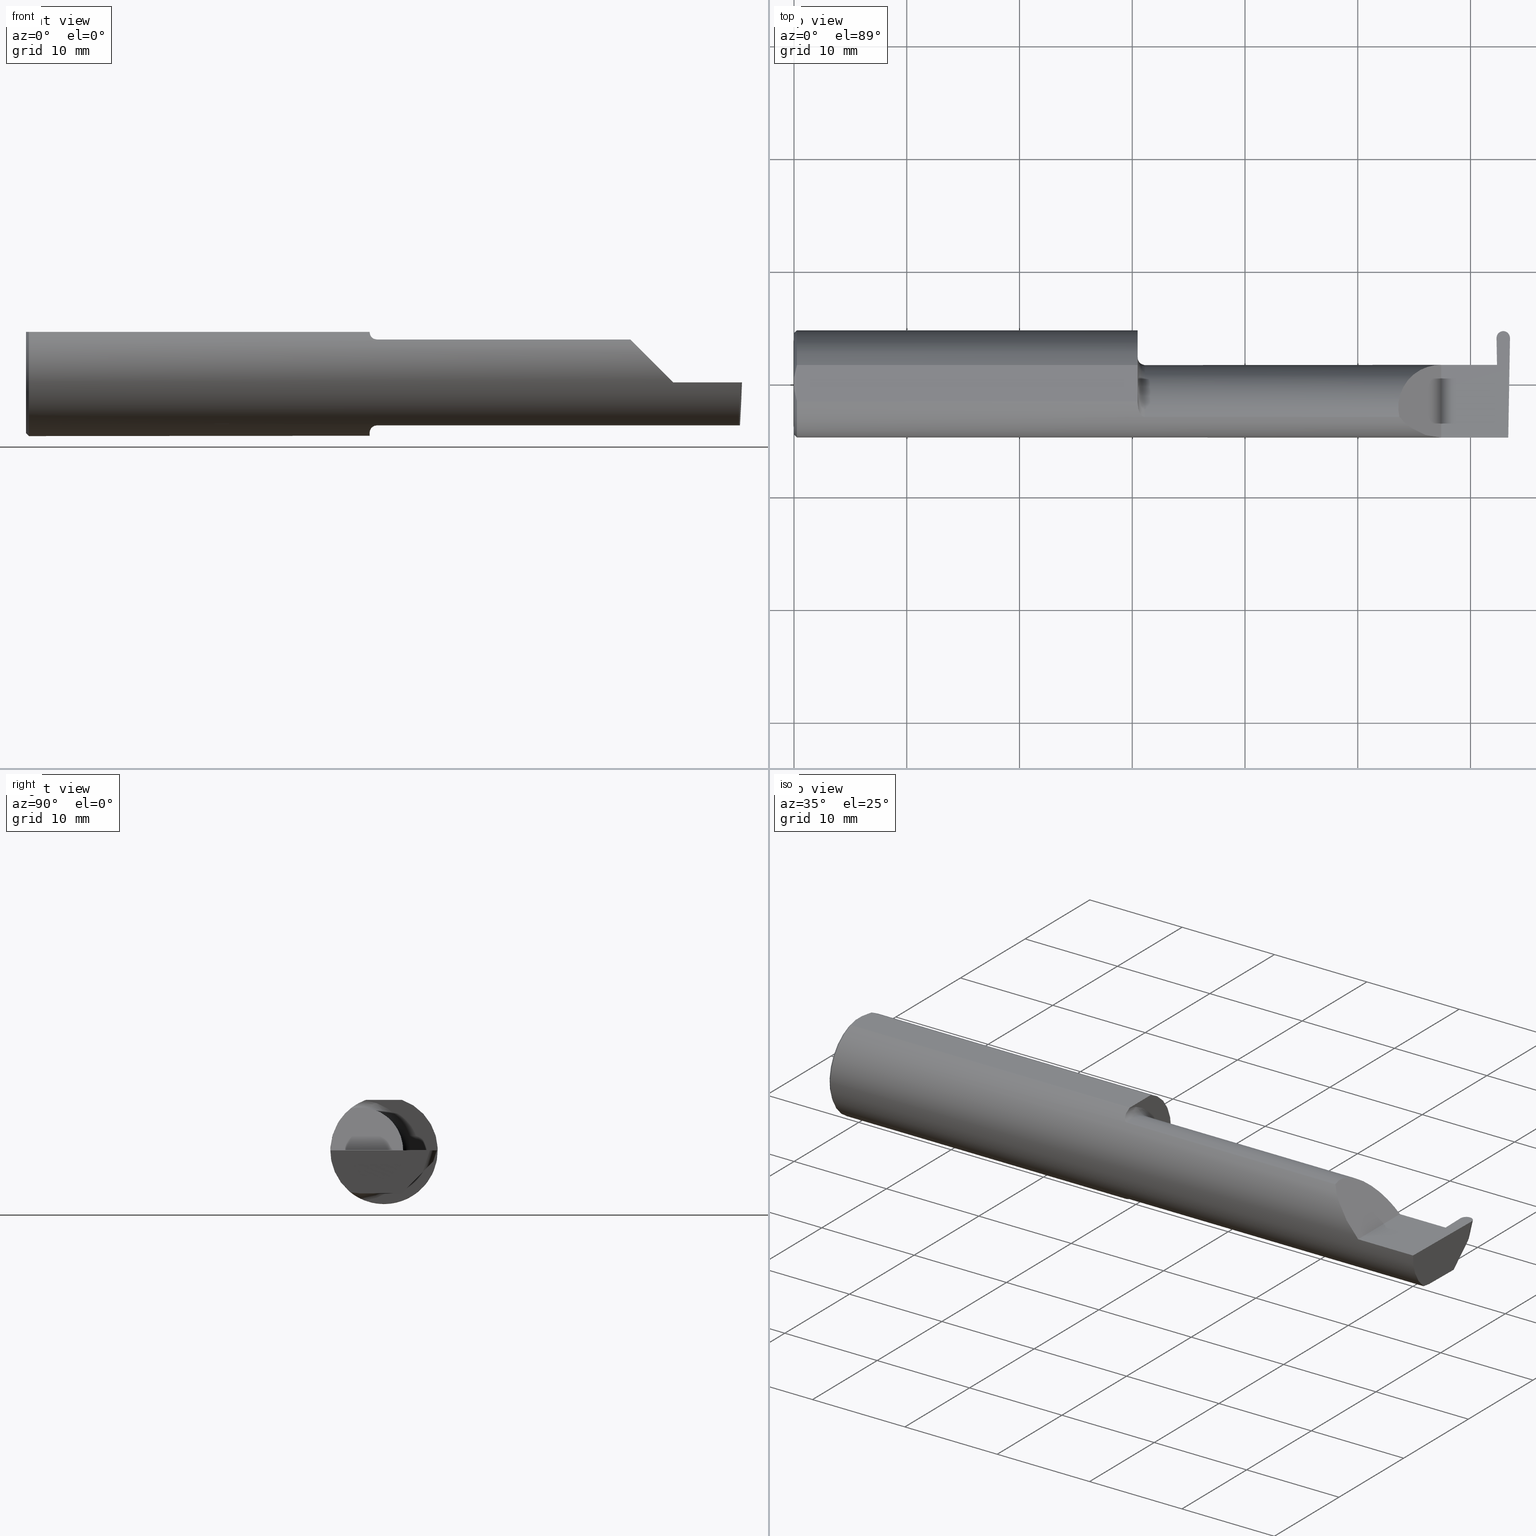
[diagram: canonical four-view strip — front | top / right | iso, engineering-drawing reading convention]
A machine part, canonical four-view strip (front | top / right | iso — engineering-drawing reading convention). The complete STEP part file that produces these views, byte-faithful:
ISO-10303-21;
HEADER;
FILE_DESCRIPTION (( 'STEP AP203' ),
    '1' );
FILE_NAME ('222113-GFR046-20.STEP',
    '2024-06-21T22:55:31',
    ( '' ),
    ( '' ),
    'SwSTEP 2.0',
    'SolidWorks 2022',
    '' );
FILE_SCHEMA (( 'CONFIG_CONTROL_DESIGN' ));
ENDSEC;

DATA;
#1 = CALENDAR_DATE ( 2024, 21, 6 ) ;
#2 = APPROVAL ( #324, 'UNSPECIFIED' ) ;
#3 = LINE ( 'NONE', #265, #423 ) ;
#4 = ORIENTED_EDGE ( 'NONE', *, *, #242, .T. ) ;
#5 = PERSON_AND_ORGANIZATION_ROLE ( 'classification_officer' ) ;
#6 = DIRECTION ( 'NONE',  ( -0.01745240643727576091, -0.9998476951563914916, 0.000000000000000000 ) ) ;
#7 = ADVANCED_FACE ( 'NONE', ( #267 ), #610, .T. ) ;
#8 = CARTESIAN_POINT ( 'NONE',  ( 1.213163223656403167, -0.1119926267047279267, 0.1502091925606061362 ) ) ;
#9 = CARTESIAN_POINT ( 'NONE',  ( 0.000000000000000000, 0.000000000000000000, 0.000000000000000000 ) ) ;
#10 = ADVANCED_FACE ( 'NONE', ( #439 ), #273, .T. ) ;
#11 = VECTOR ( 'NONE', #192, 39.37007874015748143 ) ;
#12 = DIRECTION ( 'NONE',  ( -6.813485650141123812E-17, 1.000000000000000000, 0.000000000000000000 ) ) ;
#13 = LINE ( 'NONE', #669, #501 ) ;
#14 = VERTEX_POINT ( 'NONE', #225 ) ;
#15 = CARTESIAN_POINT ( 'NONE',  ( 2.456016969906897884, 0.1354885203010862127, -0.07481453124206378924 ) ) ;
#16 = DIRECTION ( 'NONE',  ( 1.000000000000000000, 0.000000000000000000, 0.000000000000000000 ) ) ;
#17 = CIRCLE ( 'NONE', #376, 0.1773499999999999521 ) ;
#18 = EDGE_CURVE ( 'NONE', #521, #631, #63, .T. ) ;
#19 = CARTESIAN_POINT ( 'NONE',  ( 2.456016969906897884, 0.1354885203010862127, -0.07481453124206378924 ) ) ;
#20 = CARTESIAN_POINT ( 'NONE',  ( 0.000000000000000000, 0.01880691362238934988, 0.1763499999999999235 ) ) ;
#21 = DIRECTION ( 'NONE',  ( -0.03701368837992554534, 0.7066222423871548752, 0.7066222423871629799 ) ) ;
#22 = DIRECTION ( 'NONE',  ( 1.000000000000000000, 0.000000000000000000, -0.000000000000000000 ) ) ;
#23 = ORIENTED_EDGE ( 'NONE', *, *, #410, .T. ) ;
#24 = CARTESIAN_POINT ( 'NONE',  ( 2.490297801769516539, -0.09477667630339420279, -0.1499999999999999667 ) ) ;
#25 = CARTESIAN_POINT ( 'NONE',  ( 2.447302279143278358, 0.06640640502598232908, -0.006975647374413146938 ) ) ;
#26 = EDGE_LOOP ( 'NONE', ( #67, #356, #400 ) ) ;
#27 = DIRECTION ( 'NONE',  ( 0.000000000000000000, 0.000000000000000000, -1.000000000000000000 ) ) ;
#28 = EDGE_CURVE ( 'NONE', #672, #136, #232, .T. ) ;
#29 = CARTESIAN_POINT ( 'NONE',  ( 2.452963582209922055, 0.1607195194005952010, 0.000000000000000000 ) ) ;
#30 = VECTOR ( 'NONE', #245, 39.37007874015748143 ) ;
#31 = CARTESIAN_POINT ( 'NONE',  ( 0.01000000000000013205, -0.06325108694718235836, 0.1763499999999999235 ) ) ;
#32 = ORIENTED_EDGE ( 'NONE', *, *, #316, .T. ) ;
#33 = CARTESIAN_POINT ( 'NONE',  ( 2.454977397848501219, 0.06628460753894979685, -0.01046347106162132459 ) ) ;
#34 = CARTESIAN_POINT ( 'NONE',  ( 2.490571174359867967, -0.07911517109126274538, -0.1500000000000000500 ) ) ;
#35 = ORIENTED_EDGE ( 'NONE', *, *, #657, .T. ) ;
#36 = DIRECTION ( 'NONE',  ( 0.03490480639812536257, 0.000000000000000000, -0.9993906415863165194 ) ) ;
#37 = CARTESIAN_POINT ( 'NONE',  ( 0.000000000000000000, -0.01880691362238934641, 0.1763499999999999235 ) ) ;
#38 = ORIENTED_EDGE ( 'NONE', *, *, #167, .F. ) ;
#39 = CARTESIAN_POINT ( 'NONE',  ( 2.452979680742863433, 0.1597972350660649687, 0.000000000000000000 ) ) ;
#40 = B_SPLINE_CURVE_WITH_KNOTS ( 'NONE', 3,
 ( #118, #328, #563, #616, #281, #121, #231, #8, #663, #554, #60, #68 ),
 .UNSPECIFIED., .F., .F.,
 ( 4, 2, 2, 2, 2, 4 ),
 ( 4.423516731080811751E-05, 0.0004615475116586734692, 0.0008788598560065388277, 0.001296172200354404240, 0.001504828372528336025, 0.001713484544702268027 ),
 .UNSPECIFIED. ) ;
#41 = EDGE_CURVE ( 'NONE', #105, #420, #382, .T. ) ;
#42 = ORIENTED_EDGE ( 'NONE', *, *, #119, .T. ) ;
#43 = DIRECTION ( 'NONE',  ( 0.000000000000000000, 0.000000000000000000, 1.000000000000000000 ) ) ;
#44 = CARTESIAN_POINT ( 'NONE',  ( 1.199999999999999956, -0.08335000000000007681, 0.000000000000000000 ) ) ;
#45 = VERTEX_POINT ( 'NONE', #390 ) ;
#46 = CC_DESIGN_DATE_AND_TIME_ASSIGNMENT ( #219, #111, ( #114 ) ) ;
#47 = AXIS2_PLACEMENT_3D ( 'NONE', #89, #454, #666 ) ;
#48 = PERSON_AND_ORGANIZATION_ROLE ( 'design_owner' ) ;
#49 = CARTESIAN_POINT ( 'NONE',  ( 2.499996417790078862, 0.1607195194005952565, 0.000000000000000000 ) ) ;
#50 = ORIENTED_EDGE ( 'NONE', *, *, #28, .T. ) ;
#51 = SECURITY_CLASSIFICATION_LEVEL ( 'unclassified' ) ;
#52 = CARTESIAN_POINT ( 'NONE',  ( 2.496943030093102145, 0.1354885203010862682, -0.07481453124206370597 ) ) ;
#53 = ORIENTED_EDGE ( 'NONE', *, *, #518, .T. ) ;
#54 = COORDINATED_UNIVERSAL_TIME_OFFSET ( 8, 0, .BEHIND. ) ;
#55 = ADVANCED_FACE ( 'NONE', ( #504 ), #336, .F. ) ;
#56 = ORIENTED_EDGE ( 'NONE', *, *, #434, .T. ) ;
#57 = VECTOR ( 'NONE', #300, 39.37007874015748143 ) ;
#58 = ORGANIZATION ( 'UNSPECIFIED', 'UNSPECIFIED', '' ) ;
#59 = CARTESIAN_POINT ( 'NONE',  ( 1.215028532764138580, -0.1137241120808236416, -0.1488947809299402958 ) ) ;
#60 = CARTESIAN_POINT ( 'NONE',  ( 1.222161949849308371, -0.1172600179964063821, 0.1461167706989258686 ) ) ;
#61 = EDGE_CURVE ( 'NONE', #521, #146, #40, .T. ) ;
#62 = CARTESIAN_POINT ( 'NONE',  ( 1.206304331342287650, -0.1022198306720692035, -0.1570962426853817762 ) ) ;
#63 = CIRCLE ( 'NONE', #404, 0.1749999999999999889 ) ;
#64 = ORIENTED_EDGE ( 'NONE', *, *, #600, .F. ) ;
#65 = VECTOR ( 'NONE', #671, 39.37007874015748854 ) ;
#66 = CARTESIAN_POINT ( 'NONE',  ( 1.200358271039144276, -0.07873626113568087115, -0.1700887912276896063 ) ) ;
#67 = ORIENTED_EDGE ( 'NONE', *, *, #283, .T. ) ;
#68 = CARTESIAN_POINT ( 'NONE',  ( 1.225000000000000089, -0.1172600179964007477, 0.1461167706989301984 ) ) ;
#69 = EDGE_LOOP ( 'NONE', ( #72, #591, #56, #85, #482, #254 ) ) ;
#70 = EDGE_CURVE ( 'NONE', #447, #631, #455, .T. ) ;
#71 = CARTESIAN_POINT ( 'NONE',  ( 2.260000000000000231, 0.06664999999999991764, 1.592040838891559588E-16 ) ) ;
#72 = ORIENTED_EDGE ( 'NONE', *, *, #509, .F. ) ;
#73 = CARTESIAN_POINT ( 'NONE',  ( 2.473071381531744883, 0.1551305672486518739, -0.09085147220557604486 ) ) ;
#74 = FACE_OUTER_BOUND ( 'NONE', #375, .T. ) ;
#75 = AXIS2_PLACEMENT_3D ( 'NONE', #645, #352, #151 ) ;
#76 = CARTESIAN_POINT ( 'NONE',  ( 1.199999999999999956, -0.06851976604679066440, -0.1743704796142198643 ) ) ;
#77 = VERTEX_POINT ( 'NONE', #182 ) ;
#78 = DIRECTION ( 'NONE',  ( -0.03858184836401777618, -0.3087869137032490663, -0.9503484007996426675 ) ) ;
#79 = CYLINDRICAL_SURFACE ( 'NONE', #667, 0.02350000000000002087 ) ;
#80 = PLANE ( 'NONE',  #168 ) ;
#81 = LINE ( 'NONE', #347, #158 ) ;
#82 = ORIENTED_EDGE ( 'NONE', *, *, #542, .T. ) ;
#83 = EDGE_CURVE ( 'NONE', #698, #304, #13, .T. ) ;
#84 = CARTESIAN_POINT ( 'NONE',  ( 2.490040979592266446, -0.1172600179964007061, -0.1461167706989302817 ) ) ;
#85 = ORIENTED_EDGE ( 'NONE', *, *, #562, .F. ) ;
#86 = LINE ( 'NONE', #627, #11 ) ;
#87 = EDGE_LOOP ( 'NONE', ( #317, #298, #90 ) ) ;
#88 = CC_DESIGN_PERSON_AND_ORGANIZATION_ASSIGNMENT ( #318, #438, ( #223 ) ) ;
#89 = CARTESIAN_POINT ( 'NONE',  ( 1.199999999999999956, 0.000000000000000000, 0.000000000000000000 ) ) ;
#90 = ORIENTED_EDGE ( 'NONE', *, *, #680, .T. ) ;
#91 = CARTESIAN_POINT ( 'NONE',  ( 2.452963582209922055, 0.1607195194005952010, 0.000000000000000000 ) ) ;
#92 = CIRCLE ( 'NONE', #570, 0.1873499999999999888 ) ;
#93 = CARTESIAN_POINT ( 'NONE',  ( 2.491901754046578876, -0.1873499999999999610, -0.05781030015605118783 ) ) ;
#94 = ORIENTED_EDGE ( 'NONE', *, *, #226, .T. ) ;
#95 = PLANE ( 'NONE',  #327 ) ;
#96 = ADVANCED_FACE ( 'NONE', ( #446 ), #270, .T. ) ;
#97 = ORIENTED_EDGE ( 'NONE', *, *, #357, .F. ) ;
#98 = FACE_OUTER_BOUND ( 'NONE', #201, .T. ) ;
#99 = ORIENTED_EDGE ( 'NONE', *, *, #41, .T. ) ;
#100 = CALENDAR_DATE ( 2024, 21, 6 ) ;
#101 = CARTESIAN_POINT ( 'NONE',  ( 2.460115337567889249, -0.08334999999999999354, -0.1499999999999999944 ) ) ;
#102 = EDGE_LOOP ( 'NONE', ( #506, #126, #626, #512 ) ) ;
#103 = B_SPLINE_CURVE_WITH_KNOTS ( 'NONE', 3,
 ( #520, #25, #148, #692 ),
 .UNSPECIFIED., .F., .F.,
 ( 4, 4 ),
 ( 0.000000000000000000, 1.000000000000000000 ),
 .UNSPECIFIED. ) ;
#104 = CARTESIAN_POINT ( 'NONE',  ( 2.459895087900160870, 0.06145200698433272296, -0.1488510445587935549 ) ) ;
#105 = VERTEX_POINT ( 'NONE', #229 ) ;
#106 = VECTOR ( 'NONE', #78, 39.37007874015748143 ) ;
#107 = CALENDAR_DATE ( 2024, 21, 6 ) ;
#108 =( BOUNDED_CURVE ( )  B_SPLINE_CURVE ( 3, ( #535, #218, #164, #597 ),
 .UNSPECIFIED., .F., .F. ) 
 B_SPLINE_CURVE_WITH_KNOTS ( ( 4, 4 ),
 ( 3.175776140005400983, 4.698536687208078710 ),
 .UNSPECIFIED. ) 
 CURVE ( )  GEOMETRIC_REPRESENTATION_ITEM ( )  RATIONAL_B_SPLINE_CURVE ( ( 1.000000000000000000, 0.8159229469975433080, 0.8159229469975433080, 1.000000000000000000 ) ) 
 REPRESENTATION_ITEM ( '' )  );
#109 = CARTESIAN_POINT ( 'NONE',  ( 1.199999999999999956, 0.06325108694718235836, 0.1763499999999999235 ) ) ;
#110 = ORIENTED_EDGE ( 'NONE', *, *, #147, .T. ) ;
#111 = DATE_TIME_ROLE ( 'creation_date' ) ;
#112 = EDGE_CURVE ( 'NONE', #216, #396, #541, .T. ) ;
#113 = APPROVAL_DATE_TIME ( #268, #2 ) ;
#114 = PRODUCT_DEFINITION ( 'UNKNOWN', '', #223, #700 ) ;
#115 = DIRECTION ( 'NONE',  ( 0.000000000000000000, -1.000000000000000000, 0.000000000000000000 ) ) ;
#116 = VECTOR ( 'NONE', #683, 39.37007874015748854 ) ;
#117 = CC_DESIGN_SECURITY_CLASSIFICATION ( #636, ( #223 ) ) ;
#118 = CARTESIAN_POINT ( 'NONE',  ( 1.199999999999999956, -0.06851976604679066440, 0.1743704796142198643 ) ) ;
#119 = EDGE_CURVE ( 'NONE', #136, #396, #665, .T. ) ;
#120 = DIRECTION ( 'NONE',  ( 0.000000000000000000, 0.000000000000000000, -1.000000000000000000 ) ) ;
#121 = CARTESIAN_POINT ( 'NONE',  ( 1.206287624083520305, -0.1021858045380147212, 0.1571187174372874473 ) ) ;
#122 = CARTESIAN_POINT ( 'NONE',  ( 2.462360552522071089, 0.1846499999999998698, 1.730980851401795297E-18 ) ) ;
#123 = LINE ( 'NONE', #204, #469 ) ;
#124 =( GEOMETRIC_REPRESENTATION_CONTEXT ( 3 ) GLOBAL_UNCERTAINTY_ASSIGNED_CONTEXT ( ( #366 ) ) GLOBAL_UNIT_ASSIGNED_CONTEXT ( ( #416, #406, #480 ) ) REPRESENTATION_CONTEXT ( 'NONE', 'WORKASPACE' ) );
#125 = DIRECTION ( 'NONE',  ( -0.03549161113179515048, 0.03487750912278131388, 0.9987611851171729338 ) ) ;
#126 = ORIENTED_EDGE ( 'NONE', *, *, #647, .T. ) ;
#127 = ADVANCED_FACE ( 'NONE', ( #519 ), #586, .F. ) ;
#128 = CARTESIAN_POINT ( 'NONE',  ( 1.225000000000000089, -0.08335000000000010456, 0.000000000000000000 ) ) ;
#129 = ORIENTED_EDGE ( 'NONE', *, *, #388, .F. ) ;
#130 = CARTESIAN_POINT ( 'NONE',  ( 0.001616639753276021213, 0.03405189565400638246, 0.1763499999999999235 ) ) ;
#131 = CARTESIAN_POINT ( 'NONE',  ( -0.001039370078739994957, 0.1846500000000000363, 0.000000000000000000 ) ) ;
#132 = DIRECTION ( 'NONE',  ( 0.000000000000000000, 1.000000000000000000, 0.000000000000000000 ) ) ;
#133 = ORIENTED_EDGE ( 'NONE', *, *, #590, .F. ) ;
#134 = CARTESIAN_POINT ( 'NONE',  ( 2.476480000000000459, 0.1722500154617881696, -0.03805303608136137439 ) ) ;
#135 = DIRECTION ( 'NONE',  ( 0.000000000000000000, -0.7071067811865434649, -0.7071067811865515695 ) ) ;
#136 = VERTEX_POINT ( 'NONE', #189 ) ;
#137 = DIRECTION ( 'NONE',  ( -0.000000000000000000, 1.000000000000000000, -0.000000000000000000 ) ) ;
#138 = LINE ( 'NONE', #394, #601 ) ;
#139 = AXIS2_PLACEMENT_3D ( 'NONE', #258, #705, #594 ) ;
#140 = CARTESIAN_POINT ( 'NONE',  ( 0.000000000000000000, 0.01880691362238934988, 0.1763499999999999235 ) ) ;
#141 = FACE_OUTER_BOUND ( 'NONE', #387, .T. ) ;
#142 = EDGE_CURVE ( 'NONE', #706, #568, #484, .T. ) ;
#143 = PLANE ( 'NONE',  #407 ) ;
#144 = ORIENTED_EDGE ( 'NONE', *, *, #657, .F. ) ;
#145 = CARTESIAN_POINT ( 'NONE',  ( 2.150065971957465294, -0.1623470442677542591, 0.1099340280425336325 ) ) ;
#146 = VERTEX_POINT ( 'NONE', #681 ) ;
#147 = EDGE_CURVE ( 'NONE', #568, #577, #138, .T. ) ;
#148 = CARTESIAN_POINT ( 'NONE',  ( 2.447424076630286827, 0.06652820251299113030, -0.003487823687206573469 ) ) ;
#149 = EDGE_LOOP ( 'NONE', ( #642, #702, #313, #393, #415 ) ) ;
#150 = LINE ( 'NONE', #359, #176 ) ;
#151 = DIRECTION ( 'NONE',  ( 0.03547001781079399396, 0.000000000000000000, -0.9993707409347654114 ) ) ;
#152 = LINE ( 'NONE', #587, #30 ) ;
#153 = ORIENTED_EDGE ( 'NONE', *, *, #288, .T. ) ;
#154 = ADVANCED_FACE ( 'NONE', ( #74 ), #292, .F. ) ;
#155 = FACE_OUTER_BOUND ( 'NONE', #595, .T. ) ;
#156 = VECTOR ( 'NONE', #197, 39.37007874015748854 ) ;
#157 = DIRECTION ( 'NONE',  ( 0.000000000000000000, -0.7071067811865515695, 0.7071067811865434649 ) ) ;
#158 = VECTOR ( 'NONE', #297, 39.37007874015748143 ) ;
#159 = CARTESIAN_POINT ( 'NONE',  ( 2.476480000000000459, 0.1722500154617881696, -0.03805303608136137439 ) ) ;
#160 = ORIENTED_EDGE ( 'NONE', *, *, #600, .T. ) ;
#161 = EDGE_CURVE ( 'NONE', #163, #105, #621, .T. ) ;
#162 = CARTESIAN_POINT ( 'NONE',  ( 2.447545874117295739, 0.06664999999999991764, 0.000000000000000000 ) ) ;
#163 = VERTEX_POINT ( 'NONE', #515 ) ;
#164 = CARTESIAN_POINT ( 'NONE',  ( 2.498023799314527338, 0.1561213079040834895, -0.05418174363906625574 ) ) ;
#165 = ORIENTED_EDGE ( 'NONE', *, *, #410, .F. ) ;
#166 = CARTESIAN_POINT ( 'NONE',  ( 2.459937291069381970, 0.06030305154315083321, -0.1499999999999999944 ) ) ;
#167 = EDGE_CURVE ( 'NONE', #672, #14, #307, .T. ) ;
#168 = AXIS2_PLACEMENT_3D ( 'NONE', #472, #157, #135 ) ;
#169 = PERSON_AND_ORGANIZATION ( #697, #58 ) ;
#170 = ORIENTED_EDGE ( 'NONE', *, *, #173, .T. ) ;
#171 = APPROVAL_DATE_TIME ( #430, #334 ) ;
#172 = CARTESIAN_POINT ( 'NONE',  ( 1.219511795768554840, -0.1163687266324236191, -0.1468371510166787963 ) ) ;
#173 = EDGE_CURVE ( 'NONE', #581, #704, #285, .T. ) ;
#174 = DIRECTION ( 'NONE',  ( -1.000000000000000000, -0.000000000000000000, -0.000000000000000000 ) ) ;
#175 = DIRECTION ( 'NONE',  ( 0.03490480639812536257, 0.000000000000000000, 0.9993906415863165194 ) ) ;
#176 = VECTOR ( 'NONE', #583, 39.37007874015748143 ) ;
#177 = CC_DESIGN_APPROVAL ( #685, ( #114 ) ) ;
#178 = CC_DESIGN_PERSON_AND_ORGANIZATION_ASSIGNMENT ( #432, #48, ( #678 ) ) ;
#179 = CARTESIAN_POINT ( 'NONE',  ( 1.199999999999999956, -0.08335000000000007681, 0.000000000000000000 ) ) ;
#180 = DIRECTION ( 'NONE',  ( 0.000000000000000000, 0.000000000000000000, 1.000000000000000000 ) ) ;
#181 = DIRECTION ( 'NONE',  ( 0.000000000000000000, 0.000000000000000000, 1.000000000000000000 ) ) ;
#182 = CARTESIAN_POINT ( 'NONE',  ( 2.260000000000000231, -0.1873499999999999888, 2.939152317953647352E-17 ) ) ;
#183 = EDGE_CURVE ( 'NONE', #396, #581, #688, .T. ) ;
#184 = ORIENTED_EDGE ( 'NONE', *, *, #695, .F. ) ;
#185 = AXIS2_PLACEMENT_3D ( 'NONE', #363, #266, #319 ) ;
#186 = CARTESIAN_POINT ( 'NONE',  ( 2.476759731742398163, 0.1846500000000000363, 0.000000000000000000 ) ) ;
#187 = DIRECTION ( 'NONE',  ( -0.001239419280281356568, 0.9999992319196288060, 0.000000000000000000 ) ) ;
#188 = VERTEX_POINT ( 'NONE', #186 ) ;
#189 = CARTESIAN_POINT ( 'NONE',  ( 2.454605571778825102, 0.06664999999999998703, 0.000000000000000000 ) ) ;
#190 = APPLICATION_CONTEXT ( 'configuration controlled 3d designs of mechanical parts and assemblies' ) ;
#191 = FACE_OUTER_BOUND ( 'NONE', #561, .T. ) ;
#192 = DIRECTION ( 'NONE',  ( 1.000000000000000000, -0.000000000000000000, -0.000000000000000000 ) ) ;
#193 = DIRECTION ( 'NONE',  ( -1.000000000000000000, -6.813485650141123812E-17, -0.000000000000000000 ) ) ;
#194 = CARTESIAN_POINT ( 'NONE',  ( 2.260000000000000231, 0.06664999999999991764, 1.592040838891559588E-16 ) ) ;
#195 = AXIS2_PLACEMENT_3D ( 'NONE', #508, #442, #614 ) ;
#196 = ORIENTED_EDGE ( 'NONE', *, *, #553, .F. ) ;
#197 = DIRECTION ( 'NONE',  ( 0.03858184836401847007, -0.3087869137032490108, -0.9503484007996424454 ) ) ;
#198 = ADVANCED_FACE ( 'NONE', ( #287 ), #612, .T. ) ;
#199 = CC_DESIGN_APPROVAL ( #2, ( #636 ) ) ;
#200 = DIRECTION ( 'NONE',  ( 0.9992386149554827179, 0.01744177490282465548, 0.03489949670250104552 ) ) ;
#201 = EDGE_LOOP ( 'NONE', ( #42, #618, #246, #453, #50 ) ) ;
#202 = DIRECTION ( 'NONE',  ( -0.03858184836401778312, -0.3087869137032490663, -0.9503484007996426675 ) ) ;
#203 = ORIENTED_EDGE ( 'NONE', *, *, #518, .F. ) ;
#204 = CARTESIAN_POINT ( 'NONE',  ( 0.000000000000000000, -0.06325108694718235836, 0.1763499999999999235 ) ) ;
#205 = CARTESIAN_POINT ( 'NONE',  ( 2.490517704308097713, -0.1623470442677541203, -0.1099340280425337990 ) ) ;
#206 = ORIENTED_EDGE ( 'NONE', *, *, #546, .T. ) ;
#207 = LENGTH_MEASURE_WITH_UNIT ( LENGTH_MEASURE( 0.02539999999999999897 ), #699 );
#208 = DIRECTION ( 'NONE',  ( -0.000000000000000000, 1.000000000000000000, -0.000000000000000000 ) ) ;
#209 = DIRECTION ( 'NONE',  ( -1.000000000000000000, -6.813485650141123812E-17, -0.000000000000000000 ) ) ;
#210 = ORIENTED_EDGE ( 'NONE', *, *, #477, .T. ) ;
#211 = EDGE_CURVE ( 'NONE', #77, #282, #417, .T. ) ;
#212 = DIRECTION ( 'NONE',  ( -0.7071067811865509034, 0.000000000000000000, 0.7071067811865440200 ) ) ;
#213 = LINE ( 'NONE', #422, #651 ) ;
#214 = VECTOR ( 'NONE', #466, 39.37007874015748143 ) ;
#215 = AXIS2_PLACEMENT_3D ( 'NONE', #350, #675, #564 ) ;
#216 = VERTEX_POINT ( 'NONE', #343 ) ;
#217 = DATE_AND_TIME ( #435, #230 ) ;
#218 = CARTESIAN_POINT ( 'NONE',  ( 2.489663928990823560, 0.1711396766916337964, -0.03916337485151577535 ) ) ;
#219 = DATE_AND_TIME ( #107, #452 ) ;
#220 = DIRECTION ( 'NONE',  ( -0.03858184836401846313, 0.3087869137032490108, 0.9503484007996424454 ) ) ;
#221 = EDGE_CURVE ( 'NONE', #412, #581, #578, .T. ) ;
#222 = APPROVAL_ROLE ( '' ) ;
#223 = PRODUCT_DEFINITION_FORMATION_WITH_SPECIFIED_SOURCE ( 'ANY', '', #678, .NOT_KNOWN. ) ;
#224 = COORDINATED_UNIVERSAL_TIME_OFFSET ( 8, 0, .BEHIND. ) ;
#225 = CARTESIAN_POINT ( 'NONE',  ( 2.447180481656269446, 0.06628460753897352786, -0.01046347106161971824 ) ) ;
#226 = EDGE_CURVE ( 'NONE', #378, #136, #240, .T. ) ;
#227 = DIRECTION ( 'NONE',  ( 0.000000000000000000, 0.000000000000000000, -1.000000000000000000 ) ) ;
#228 = DIRECTION ( 'NONE',  ( -1.000000000000000000, -6.813485650141123812E-17, -0.000000000000000000 ) ) ;
#229 = CARTESIAN_POINT ( 'NONE',  ( 2.490497255146305822, -0.08334999999999997966, -0.1500000000000000500 ) ) ;
#230 = LOCAL_TIME ( 15, 55, 31.00000000000000000, #707 ) ;
#231 = CARTESIAN_POINT ( 'NONE',  ( 1.208475602106621416, -0.1064978748893407601, 0.1542035505680382779 ) ) ;
#232 = LINE ( 'NONE', #668, #622 ) ;
#233 = ADVANCED_FACE ( 'NONE', ( #694 ), #79, .T. ) ;
#234 = ORIENTED_EDGE ( 'NONE', *, *, #388, .T. ) ;
#235 = DIRECTION ( 'NONE',  ( 0.7071067811865511255, 0.000000000000000000, -0.7071067811865439090 ) ) ;
#236 = CARTESIAN_POINT ( 'NONE',  ( 2.493004728488126265, 0.06030305154315079852, -0.1500000000000000500 ) ) ;
#237 = CC_DESIGN_PERSON_AND_ORGANIZATION_ASSIGNMENT ( #169, #5, ( #636 ) ) ;
#238 = ORIENTED_EDGE ( 'NONE', *, *, #28, .F. ) ;
#239 = LOCAL_TIME ( 15, 55, 31.00000000000000000, #607 ) ;
#240 = LINE ( 'NONE', #401, #550 ) ;
#241 = LINE ( 'NONE', #256, #272 ) ;
#242 = EDGE_CURVE ( 'NONE', #163, #447, #150, .T. ) ;
#243 = CARTESIAN_POINT ( 'NONE',  ( 0.01000000000000013205, 0.000000000000000000, 0.000000000000000000 ) ) ;
#244 = CARTESIAN_POINT ( 'NONE',  ( 0.000000000000000000, 0.000000000000000000, 0.000000000000000000 ) ) ;
#245 = DIRECTION ( 'NONE',  ( -0.03701368837992397021, -0.7066222423871549863, -0.7066222423871630909 ) ) ;
#246 = ORIENTED_EDGE ( 'NONE', *, *, #221, .F. ) ;
#247 = CARTESIAN_POINT ( 'NONE',  ( 0.000000000000000000, 0.000000000000000000, 0.000000000000000000 ) ) ;
#248 = CARTESIAN_POINT ( 'NONE',  ( 2.733184360054361939, -0.08334999999999997966, -0.1500000000000000500 ) ) ;
#249 = ORIENTED_EDGE ( 'NONE', *, *, #708, .T. ) ;
#250 = CARTESIAN_POINT ( 'NONE',  ( 2.452968669080377140, 0.1598853660763216722, 0.0002712393593816663493 ) ) ;
#251 = VECTOR ( 'NONE', #187, 39.37007874015748854 ) ;
#252 = ORIENTED_EDGE ( 'NONE', *, *, #226, .F. ) ;
#253 = CARTESIAN_POINT ( 'NONE',  ( 2.490599447477928052, 0.1846499999999998420, -1.730980851401792408E-18 ) ) ;
#254 = ORIENTED_EDGE ( 'NONE', *, *, #288, .F. ) ;
#255 = CARTESIAN_POINT ( 'NONE',  ( 2.457926070388992468, 0.06048930266824071450, -0.09334019187383278682 ) ) ;
#256 = CARTESIAN_POINT ( 'NONE',  ( 1.199999999999999956, 0.06664999999999984825, 1.592040838891559588E-16 ) ) ;
#257 = ORIENTED_EDGE ( 'NONE', *, *, #167, .T. ) ;
#258 = CARTESIAN_POINT ( 'NONE',  ( 2.472512750841366902, 0.1918129394110904828, 0.09809285817454170553 ) ) ;
#259 = ORIENTED_EDGE ( 'NONE', *, *, #386, .F. ) ;
#260 = PERSON_AND_ORGANIZATION ( #697, #58 ) ;
#261 = CARTESIAN_POINT ( 'NONE',  ( 2.113883229301068312, -0.1172600179964008726, 0.1461167706989301429 ) ) ;
#262 = VECTOR ( 'NONE', #137, 39.37007874015748143 ) ;
#263 = ORIENTED_EDGE ( 'NONE', *, *, #70, .F. ) ;
#264 = PERSON_AND_ORGANIZATION ( #697, #58 ) ;
#265 = CARTESIAN_POINT ( 'NONE',  ( 0.000000000000000000, 0.1873499999999998500, 0.1763499999999999235 ) ) ;
#266 = DIRECTION ( 'NONE',  ( 9.668203783556934093E-15, -0.9993908270190957621, 0.03489949670250104552 ) ) ;
#267 = FACE_OUTER_BOUND ( 'NONE', #331, .T. ) ;
#268 = DATE_AND_TIME ( #1, #502 ) ;
#269 =( BOUNDED_CURVE ( )  B_SPLINE_CURVE ( 3, ( #372, #603, #255, #475 ),
 .UNSPECIFIED., .F., .F. ) 
 B_SPLINE_CURVE_WITH_KNOTS ( ( 4, 4 ),
 ( 3.176499238629677535, 4.677482395344773280 ),
 .UNSPECIFIED. ) 
 CURVE ( )  GEOMETRIC_REPRESENTATION_ITEM ( )  RATIONAL_B_SPLINE_CURVE ( ( 1.000000000000000000, 0.8209024677461199682, 0.8209024677461199682, 1.000000000000000000 ) ) 
 REPRESENTATION_ITEM ( '' )  );
#270 = CONICAL_SURFACE ( 'NONE', #549, 0.1773499999999999521, 0.7853981633974431720 ) ;
#271 = EDGE_CURVE ( 'NONE', #631, #304, #690, .T. ) ;
#272 = VECTOR ( 'NONE', #459, 39.37007874015748143 ) ;
#273 = PLANE ( 'NONE',  #195 ) ;
#274 = CC_DESIGN_PERSON_AND_ORGANIZATION_ASSIGNMENT ( #260, #489, ( #223 ) ) ;
#275 = CARTESIAN_POINT ( 'NONE',  ( 1.222174967710399462, -0.1172600179964008033, -0.1461167706989301707 ) ) ;
#276 = CARTESIAN_POINT ( 'NONE',  ( 1.202960551809340251, -0.09317341542745753713, -0.1626248379125196653 ) ) ;
#277 = CARTESIAN_POINT ( 'NONE',  ( 2.876828993045917215, 0.1873499999999998500, 0.1763499999999999235 ) ) ;
#278 = EDGE_LOOP ( 'NONE', ( #605, #474, #35, #674 ) ) ;
#279 = AXIS2_PLACEMENT_3D ( 'NONE', #243, #582, #27 ) ;
#280 = ADVANCED_FACE ( 'NONE', ( #490 ), #95, .F. ) ;
#281 = CARTESIAN_POINT ( 'NONE',  ( 1.202945243422983035, -0.09312071749437438040, 0.1626553472577905168 ) ) ;
#282 = VERTEX_POINT ( 'NONE', #261 ) ;
#283 = EDGE_CURVE ( 'NONE', #584, #706, #3, .T. ) ;
#284 = CARTESIAN_POINT ( 'NONE',  ( 1.208439486659306672, -0.1064616213911159376, -0.1542305641651500192 ) ) ;
#285 =( BOUNDED_CURVE ( )  B_SPLINE_CURVE ( 3, ( #15, #628, #450, #134 ),
 .UNSPECIFIED., .F., .F. ) 
 B_SPLINE_CURVE_WITH_KNOTS ( ( 4, 4 ),
 ( 4.726241273561298861, 6.249001820764003234 ),
 .UNSPECIFIED. ) 
 CURVE ( )  GEOMETRIC_REPRESENTATION_ITEM ( )  RATIONAL_B_SPLINE_CURVE ( ( 1.000000000000000000, 0.8159229469975370908, 0.8159229469975370908, 1.000000000000000000 ) ) 
 REPRESENTATION_ITEM ( '' )  );
#286 = ORIENTED_EDGE ( 'NONE', *, *, #609, .T. ) ;
#287 = FACE_OUTER_BOUND ( 'NONE', #592, .T. ) ;
#288 = EDGE_CURVE ( 'NONE', #654, #105, #373, .T. ) ;
#289 = CARTESIAN_POINT ( 'NONE',  ( 0.005151108632379722968, -0.04888864921576022843, 0.1763499999999999235 ) ) ;
#290 = VECTOR ( 'NONE', #174, 39.37007874015748143 ) ;
#291 = CARTESIAN_POINT ( 'NONE',  ( 1.199999999999999956, -0.06325108694718287183, 0.1763499999999999235 ) ) ;
#292 = PLANE ( 'NONE',  #215 ) ;
#293 = CARTESIAN_POINT ( 'NONE',  ( 2.490040979592266446, -0.1172600179964007061, -0.1461167706989302817 ) ) ;
#294 = ORIENTED_EDGE ( 'NONE', *, *, #434, .F. ) ;
#295 = CARTESIAN_POINT ( 'NONE',  ( 1.199999999999998623, 0.06628460753894953317, -0.01046347106196185428 ) ) ;
#296 = ORIENTED_EDGE ( 'NONE', *, *, #61, .F. ) ;
#297 = DIRECTION ( 'NONE',  ( -1.000000000000000000, -0.000000000000000000, -0.000000000000000000 ) ) ;
#298 = ORIENTED_EDGE ( 'NONE', *, *, #211, .F. ) ;
#299 = CARTESIAN_POINT ( 'NONE',  ( 2.260000000000000231, -0.2500000000000000555, 2.939152317953647352E-17 ) ) ;
#300 = DIRECTION ( 'NONE',  ( -1.000000000000000000, -6.813485650141123812E-17, -0.000000000000000000 ) ) ;
#301 = ORIENTED_EDGE ( 'NONE', *, *, #562, .T. ) ;
#302 = DIRECTION ( 'NONE',  ( 1.000000000000000000, 0.000000000000000000, 0.000000000000000000 ) ) ;
#303 = CARTESIAN_POINT ( 'NONE',  ( 2.476480000000000015, 0.1790328857325878542, -0.01728770010724656539 ) ) ;
#304 = VERTEX_POINT ( 'NONE', #109 ) ;
#305 = CARTESIAN_POINT ( 'NONE',  ( 2.260000000000000231, -0.2500000000000000555, 2.939152317953647352E-17 ) ) ;
#306 = EDGE_CURVE ( 'NONE', #412, #672, #648, .T. ) ;
#307 = LINE ( 'NONE', #295, #57 ) ;
#308 = LOCAL_TIME ( 15, 55, 31.00000000000000000, #224 ) ;
#309 = PLANE ( 'NONE',  #75 ) ;
#310 = LINE ( 'NONE', #467, #116 ) ;
#311 = VERTEX_POINT ( 'NONE', #166 ) ;
#312 = CARTESIAN_POINT ( 'NONE',  ( 2.454167022061947367, 0.2173950921581846440, 0.007092040615035606621 ) ) ;
#313 = ORIENTED_EDGE ( 'NONE', *, *, #112, .F. ) ;
#314 = PERSON_AND_ORGANIZATION ( #697, #58 ) ;
#315 = LINE ( 'NONE', #131, #691 ) ;
#316 = EDGE_CURVE ( 'NONE', #533, #577, #92, .T. ) ;
#317 = ORIENTED_EDGE ( 'NONE', *, *, #542, .F. ) ;
#318 = PERSON_AND_ORGANIZATION ( #697, #58 ) ;
#319 = DIRECTION ( 'NONE',  ( 0.000000000000000000, -0.03489949670250104552, -0.9993908270190957621 ) ) ;
#320 = VECTOR ( 'NONE', #21, 39.37007874015748854 ) ;
#321 = APPROVAL_PERSON_ORGANIZATION ( #655, #2, #545 ) ;
#322 = CARTESIAN_POINT ( 'NONE',  ( 2.454605571778825102, 0.06664999999999998703, 0.000000000000000000 ) ) ;
#323 = ORIENTED_EDGE ( 'NONE', *, *, #271, .F. ) ;
#324 = APPROVAL_STATUS ( 'not_yet_approved' ) ;
#325 = SHAPE_DEFINITION_REPRESENTATION ( #463, #391 ) ;
#326 = CARTESIAN_POINT ( 'NONE',  ( 0.000000000000000000, 0.000000000000000000, 0.000000000000000000 ) ) ;
#327 = AXIS2_PLACEMENT_3D ( 'NONE', #49, #538, #175 ) ;
#328 = CARTESIAN_POINT ( 'NONE',  ( 1.199999999999999956, -0.07367581953296710451, 0.1723443821957855171 ) ) ;
#329 = CARTESIAN_POINT ( 'NONE',  ( 1.225000000000000089, -0.1172600179964008171, -0.1461167706989301984 ) ) ;
#330 = ADVANCED_FACE ( 'NONE', ( #155 ), #656, .T. ) ;
#331 = EDGE_LOOP ( 'NONE', ( #629, #301, #210, #445, #165, #296, #203, #650, #32, #249, #64, #323, #263 ) ) ;
#332 = CARTESIAN_POINT ( 'NONE',  ( 2.452725869110807366, 0.1743380937279881138, 2.910889271442055903E-18 ) ) ;
#333 = AXIS2_PLACEMENT_3D ( 'NONE', #703, #209, #419 ) ;
#334 = APPROVAL ( #608, 'UNSPECIFIED' ) ;
#335 = ORIENTED_EDGE ( 'NONE', *, *, #494, .F. ) ;
#336 = PLANE ( 'NONE',  #443 ) ;
#337 = ORIENTED_EDGE ( 'NONE', *, *, #569, .T. ) ;
#338 = EDGE_CURVE ( 'NONE', #45, #216, #653, .T. ) ;
#339 = DIRECTION ( 'NONE',  ( -1.000000000000000000, -0.000000000000000000, -0.000000000000000000 ) ) ;
#340 = ORIENTED_EDGE ( 'NONE', *, *, #680, .F. ) ;
#341 = CARTESIAN_POINT ( 'NONE',  ( 2.155331797197863608, 0.06664999999999991764, 0.1046682028021361927 ) ) ;
#342 = ORIENTED_EDGE ( 'NONE', *, *, #41, .F. ) ;
#343 = CARTESIAN_POINT ( 'NONE',  ( 2.476200268257601422, 0.1846500000000000363, 0.000000000000000000 ) ) ;
#344 = PLANE ( 'NONE',  #513 ) ;
#345 = DIRECTION ( 'NONE',  ( -1.000000000000000000, -0.000000000000000000, -0.000000000000000000 ) ) ;
#346 = CLOSED_SHELL ( 'NONE', ( #198, #368, #7, #670, #575, #437, #55, #96, #127, #330, #10, #499, #154, #451, #465, #280, #460, #233, #380 ) ) ;
#347 = CARTESIAN_POINT ( 'NONE',  ( 0.000000000000000000, 0.06325108694718235836, 0.1763499999999999235 ) ) ;
#348 = VERTEX_POINT ( 'NONE', #52 ) ;
#349 = APPROVAL_PERSON_ORGANIZATION ( #264, #334, #222 ) ;
#350 = CARTESIAN_POINT ( 'NONE',  ( -0.001039370078739994957, 0.1846500000000000363, 0.000000000000000000 ) ) ;
#351 = CARTESIAN_POINT ( 'NONE',  ( 0.005155213631852488369, 0.04890080824240059659, 0.1763499999999999235 ) ) ;
#352 = DIRECTION ( 'NONE',  ( 0.9993699743034455407, 0.001238639365660558185, 0.03546999060124557401 ) ) ;
#353 = CARTESIAN_POINT ( 'NONE',  ( 0.000000000000000000, -0.01880691362238934641, 0.1763499999999999235 ) ) ;
#354 = CARTESIAN_POINT ( 'NONE',  ( 2.113883229301068312, -0.1172600179964008726, 0.1461167706989301429 ) ) ;
#355 = CARTESIAN_POINT ( 'NONE',  ( 2.460115757045640450, -0.08368844675136279110, -0.1500000000000000500 ) ) ;
#356 = ORIENTED_EDGE ( 'NONE', *, *, #142, .T. ) ;
#357 = EDGE_CURVE ( 'NONE', #568, #584, #17, .T. ) ;
#358 = CARTESIAN_POINT ( 'NONE',  ( 2.476480000000000459, 0.1722500154617881696, -0.03805303608136137439 ) ) ;
#359 = CARTESIAN_POINT ( 'NONE',  ( 1.838979999999999837, -0.1172600179964007477, -0.1461167706989302817 ) ) ;
#360 = FACE_OUTER_BOUND ( 'NONE', #530, .T. ) ;
#361 = ORIENTED_EDGE ( 'NONE', *, *, #112, .T. ) ;
#362 = AXIS2_PLACEMENT_3D ( 'NONE', #128, #193, #573 ) ;
#363 = CARTESIAN_POINT ( 'NONE',  ( 2.454605571778825102, 0.06664999999999998703, 0.000000000000000000 ) ) ;
#364 = ORIENTED_EDGE ( 'NONE', *, *, #306, .F. ) ;
#365 = ORIENTED_EDGE ( 'NONE', *, *, #83, .T. ) ;
#366 = UNCERTAINTY_MEASURE_WITH_UNIT (LENGTH_MEASURE( 1.000000000000000082E-05 ), #416, 'distance_accuracy_value', 'NONE');
#367 = DIRECTION ( 'NONE',  ( 1.000000000000000000, 6.813485650141123812E-17, 0.000000000000000000 ) ) ;
#368 = ADVANCED_FACE ( 'NONE', ( #431 ), #658, .F. ) ;
#369 = EDGE_LOOP ( 'NONE', ( #335, #661, #424, #184, #534 ) ) ;
#370 = ORIENTED_EDGE ( 'NONE', *, *, #338, .T. ) ;
#371 = PERSON_AND_ORGANIZATION ( #697, #58 ) ;
#372 = CARTESIAN_POINT ( 'NONE',  ( 2.460115337567889249, -0.08334999999999999354, -0.1499999999999999944 ) ) ;
#373 = LINE ( 'NONE', #34, #551 ) ;
#374 = AXIS2_PLACEMENT_3D ( 'NONE', #44, #228, #440 ) ;
#375 = EDGE_LOOP ( 'NONE', ( #687, #370, #449 ) ) ;
#376 = AXIS2_PLACEMENT_3D ( 'NONE', #384, #615, #120 ) ;
#377 = DATE_TIME_ROLE ( 'classification_date' ) ;
#378 = VERTEX_POINT ( 'NONE', #162 ) ;
#379 = APPROVAL_DATE_TIME ( #217, #685 ) ;
#380 = ADVANCED_FACE ( 'NONE', ( #493 ), #701, .T. ) ;
#381 = DIRECTION ( 'NONE',  ( -1.000000000000000000, -0.000000000000000000, -0.000000000000000000 ) ) ;
#382 = LINE ( 'NONE', #385, #290 ) ;
#383 = AXIS2_PLACEMENT_3D ( 'NONE', #247, #339, #523 ) ;
#384 = CARTESIAN_POINT ( 'NONE',  ( 0.000000000000000000, 0.000000000000000000, 0.000000000000000000 ) ) ;
#385 = CARTESIAN_POINT ( 'NONE',  ( 2.733184360054361939, -0.08334999999999997966, -0.1500000000000000500 ) ) ;
#386 = EDGE_CURVE ( 'NONE', #420, #672, #269, .T. ) ;
#387 = EDGE_LOOP ( 'NONE', ( #503, #364, #129, #679 ) ) ;
#388 = EDGE_CURVE ( 'NONE', #311, #412, #427, .T. ) ;
#389 = DIRECTION ( 'NONE',  ( 1.000000000000000000, 0.000000000000000000, -0.000000000000000000 ) ) ;
#390 = CARTESIAN_POINT ( 'NONE',  ( 2.476480000000000015, 0.1824111880958903253, -0.006890354540110450732 ) ) ;
#391 = ADVANCED_BREP_SHAPE_REPRESENTATION ( '222113-GFR046-20', ( #402, #487 ), #124 ) ;
#392 = CIRCLE ( 'NONE', #333, 0.1499999999999999112 ) ;
#393 = ORIENTED_EDGE ( 'NONE', *, *, #338, .F. ) ;
#394 = CARTESIAN_POINT ( 'NONE',  ( 0.000000000000000000, 0.000000000000000000, -0.1773499999999999521 ) ) ;
#395 = CARTESIAN_POINT ( 'NONE',  ( 0.001595548104417008695, -0.03385300050298640367, 0.1763499999999999235 ) ) ;
#396 = VERTEX_POINT ( 'NONE', #39 ) ;
#397 = EDGE_LOOP ( 'NONE', ( #238, #257, #286, #94 ) ) ;
#398 = CARTESIAN_POINT ( 'NONE',  ( 2.500234130889192219, 0.1743380937279881138, -2.910889271442051666E-18 ) ) ;
#399 = CARTESIAN_POINT ( 'NONE',  ( 2.493920841729410753, -0.1873499999999999888, 0.000000000000000000 ) ) ;
#400 = ORIENTED_EDGE ( 'NONE', *, *, #357, .T. ) ;
#401 = CARTESIAN_POINT ( 'NONE',  ( 2.454605571778825102, 0.06664999999999998703, 0.000000000000000000 ) ) ;
#402 = MANIFOLD_SOLID_BREP ( 'Radii', #346 ) ;
#403 = CARTESIAN_POINT ( 'NONE',  ( 2.500000000000000000, -0.2500000000000000555, 0.000000000000000000 ) ) ;
#404 = AXIS2_PLACEMENT_3D ( 'NONE', #179, #673, #115 ) ;
#405 = ORIENTED_EDGE ( 'NONE', *, *, #590, .T. ) ;
#406 =( NAMED_UNIT ( * ) PLANE_ANGLE_UNIT ( ) SI_UNIT ( $, .RADIAN. ) );
#407 = AXIS2_PLACEMENT_3D ( 'NONE', #248, #473, #22 ) ;
#408 = DIRECTION ( 'NONE',  ( 0.000000000000000000, 0.000000000000000000, -1.000000000000000000 ) ) ;
#409 = ORIENTED_EDGE ( 'NONE', *, *, #119, .F. ) ;
#410 = EDGE_CURVE ( 'NONE', #146, #282, #213, .T. ) ;
#411 = CARTESIAN_POINT ( 'NONE',  ( 0.000000000000000000, 0.000000000000000000, -0.1773499999999999521 ) ) ;
#412 = VERTEX_POINT ( 'NONE', #104 ) ;
#413 = CARTESIAN_POINT ( 'NONE',  ( 2.473071381531744883, 0.1327807391157157513, -0.08358957283776476122 ) ) ;
#414 = CARTESIAN_POINT ( 'NONE',  ( 2.090221225029925911, -0.01530148607434188811, 0.1697787749700727378 ) ) ;
#415 = ORIENTED_EDGE ( 'NONE', *, *, #620, .T. ) ;
#416 =( CONVERSION_BASED_UNIT ( 'INCH', #207 ) LENGTH_UNIT ( ) NAMED_UNIT ( #507 ) );
#417 =( BOUNDED_CURVE ( )  B_SPLINE_CURVE ( 3, ( #639, #470, #145, #354 ),
 .UNSPECIFIED., .F., .T. ) 
 B_SPLINE_CURVE_WITH_KNOTS ( ( 4, 4 ),
 ( 4.712388980384688786, 5.606916381293135743 ),
 .UNSPECIFIED. ) 
 CURVE ( )  GEOMETRIC_REPRESENTATION_ITEM ( )  RATIONAL_B_SPLINE_CURVE ( ( 1.000000000000000000, 0.9344226172588803170, 0.9344226172588803170, 1.000000000000000000 ) ) 
 REPRESENTATION_ITEM ( '' )  );
#418 = CARTESIAN_POINT ( 'NONE',  ( 2.472512750841366902, 0.2141627675440266054, 0.09083095880673042188 ) ) ;
#419 = DIRECTION ( 'NONE',  ( 0.000000000000000000, -1.000000000000000000, 0.000000000000000000 ) ) ;
#420 = VERTEX_POINT ( 'NONE', #101 ) ;
#421 = EDGE_CURVE ( 'NONE', #704, #348, #108, .T. ) ;
#422 = CARTESIAN_POINT ( 'NONE',  ( 1.838979999999999837, -0.1172600179964007477, 0.1461167706989302817 ) ) ;
#423 = VECTOR ( 'NONE', #208, 39.37007874015748143 ) ;
#424 = ORIENTED_EDGE ( 'NONE', *, *, #620, .F. ) ;
#425 = CALENDAR_DATE ( 2024, 21, 6 ) ;
#426 = EDGE_CURVE ( 'NONE', #216, #188, #315, .T. ) ;
#427 = LINE ( 'NONE', #312, #624 ) ;
#428 = ORIENTED_EDGE ( 'NONE', *, *, #421, .T. ) ;
#429 = ORIENTED_EDGE ( 'NONE', *, *, #18, .T. ) ;
#430 = DATE_AND_TIME ( #425, #239 ) ;
#431 = FACE_OUTER_BOUND ( 'NONE', #397, .T. ) ;
#432 = PERSON_AND_ORGANIZATION ( #697, #58 ) ;
#433 = AXIS2_PLACEMENT_3D ( 'NONE', #403, #576, #529 ) ;
#434 = EDGE_CURVE ( 'NONE', #557, #598, #458, .T. ) ;
#435 = CALENDAR_DATE ( 2024, 21, 6 ) ;
#436 = DIRECTION ( 'NONE',  ( 1.000000000000000000, 0.000000000000000000, 0.000000000000000000 ) ) ;
#437 = ADVANCED_FACE ( 'NONE', ( #191 ), #505, .T. ) ;
#438 = PERSON_AND_ORGANIZATION_ROLE ( 'creator' ) ;
#439 = FACE_OUTER_BOUND ( 'NONE', #536, .T. ) ;
#440 = DIRECTION ( 'NONE',  ( 0.000000000000000000, -1.000000000000000000, 0.000000000000000000 ) ) ;
#441 = EDGE_CURVE ( 'NONE', #533, #698, #123, .T. ) ;
#442 = DIRECTION ( 'NONE',  ( 1.000000000000000000, 6.813485650141123812E-17, 0.000000000000000000 ) ) ;
#443 = AXIS2_PLACEMENT_3D ( 'NONE', #326, #436, #552 ) ;
#444 = VECTOR ( 'NONE', #220, 39.37007874015748854 ) ;
#445 = ORIENTED_EDGE ( 'NONE', *, *, #211, .T. ) ;
#446 = FACE_OUTER_BOUND ( 'NONE', #278, .T. ) ;
#447 = VERTEX_POINT ( 'NONE', #585 ) ;
#448 = DIRECTION ( 'NONE',  ( 1.000000000000000000, 0.000000000000000000, 0.000000000000000000 ) ) ;
#449 = ORIENTED_EDGE ( 'NONE', *, *, #426, .T. ) ;
#450 = CARTESIAN_POINT ( 'NONE',  ( 2.463296071009176913, 0.1711396766916343237, -0.03916337485151522718 ) ) ;
#451 = ADVANCED_FACE ( 'NONE', ( #634 ), #80, .F. ) ;
#452 = LOCAL_TIME ( 15, 55, 31.00000000000000000, #596 ) ;
#453 = ORIENTED_EDGE ( 'NONE', *, *, #306, .T. ) ;
#454 = DIRECTION ( 'NONE',  ( 1.000000000000000000, 6.813485650141123812E-17, 0.000000000000000000 ) ) ;
#455 = B_SPLINE_CURVE_WITH_KNOTS ( 'NONE', 3,
 ( #329, #275, #172, #59, #556, #284, #62, #276, #498, #66, #500, #497 ),
 .UNSPECIFIED., .F., .F.,
 ( 4, 2, 2, 2, 2, 4 ),
 ( 1.967976973692733563E-07, 0.0002120314145722270013, 0.0004238660314470846929, 0.0008475352651968001303, 0.001271204498946515568, 0.001694873732696231114 ),
 .UNSPECIFIED. ) ;
#456 = FACE_OUTER_BOUND ( 'NONE', #87, .T. ) ;
#457 = CARTESIAN_POINT ( 'NONE',  ( 2.499980319257137484, 0.1597972350660649687, 0.000000000000000000 ) ) ;
#458 = LINE ( 'NONE', #682, #65 ) ;
#459 = DIRECTION ( 'NONE',  ( 1.000000000000000000, 6.813485650141123812E-17, 0.000000000000000000 ) ) ;
#460 = ADVANCED_FACE ( 'NONE', ( #141 ), #309, .F. ) ;
#461 = CARTESIAN_POINT ( 'NONE',  ( 2.490145048687840479, -0.1061291577212409437, -0.1486999626928445506 ) ) ;
#462 = LINE ( 'NONE', #355, #251 ) ;
#463 = PRODUCT_DEFINITION_SHAPE ( 'NONE', 'NONE',  #114 ) ;
#464 = ORIENTED_EDGE ( 'NONE', *, *, #316, .F. ) ;
#465 = ADVANCED_FACE ( 'NONE', ( #98 ), #528, .F. ) ;
#466 = DIRECTION ( 'NONE',  ( -0.01745240643727800564, 0.9998476951563912696, -0.000000000000000000 ) ) ;
#467 = CARTESIAN_POINT ( 'NONE',  ( 2.499991330919623778, 0.1598853660763216722, 0.0002712393593816795224 ) ) ;
#468 = ORIENTED_EDGE ( 'NONE', *, *, #161, .F. ) ;
#469 = VECTOR ( 'NONE', #302, 39.37007874015748143 ) ;
#470 = CARTESIAN_POINT ( 'NONE',  ( 2.202189699843948745, -0.1873500000000000443, 0.05781030015605096578 ) ) ;
#471 = CC_DESIGN_PERSON_AND_ORGANIZATION_ASSIGNMENT ( #371, #602, ( #114 ) ) ;
#472 = CARTESIAN_POINT ( 'NONE',  ( -0.001039370078739994957, 0.1723030515431495657, -0.03799999999999999906 ) ) ;
#473 = DIRECTION ( 'NONE',  ( 0.000000000000000000, 0.000000000000000000, 1.000000000000000000 ) ) ;
#474 = ORIENTED_EDGE ( 'NONE', *, *, #142, .F. ) ;
#475 = CARTESIAN_POINT ( 'NONE',  ( 2.454977397848501219, 0.06628460753894979685, -0.01046347106162132459 ) ) ;
#476 = LINE ( 'NONE', #640, #589 ) ;
#477 = EDGE_CURVE ( 'NONE', #598, #77, #476, .T. ) ;
#478 = CARTESIAN_POINT ( 'NONE',  ( 0.01000000000000013205, 0.06325108694718235836, 0.1763499999999999235 ) ) ;
#479 = ORIENTED_EDGE ( 'NONE', *, *, #426, .F. ) ;
#480 =( NAMED_UNIT ( * ) SI_UNIT ( $, .STERADIAN. ) SOLID_ANGLE_UNIT ( ) );
#481 = DIRECTION ( 'NONE',  ( 1.000000000000000000, 0.000000000000000000, 0.000000000000000000 ) ) ;
#482 = ORIENTED_EDGE ( 'NONE', *, *, #161, .T. ) ;
#483 = EDGE_CURVE ( 'NONE', #557, #188, #496, .T. ) ;
#484 = CIRCLE ( 'NONE', #383, 0.1773499999999999521 ) ;
#485 = APPLICATION_PROTOCOL_DEFINITION ( 'international standard', 'config_control_design', 1994, #611 ) ;
#486 = DIRECTION ( 'NONE',  ( 0.000000000000000000, 0.000000000000000000, -1.000000000000000000 ) ) ;
#487 = AXIS2_PLACEMENT_3D ( 'NONE', #548, #43, #593 ) ;
#488 = ORIENTED_EDGE ( 'NONE', *, *, #83, .F. ) ;
#489 = PERSON_AND_ORGANIZATION_ROLE ( 'design_supplier' ) ;
#490 = FACE_OUTER_BOUND ( 'NONE', #69, .T. ) ;
#491 = EDGE_LOOP ( 'NONE', ( #517, #170, #428, #684, #579, #234 ) ) ;
#492 = APPLICATION_PROTOCOL_DEFINITION ( 'international standard', 'config_control_design', 1994, #190 ) ;
#493 = FACE_OUTER_BOUND ( 'NONE', #149, .T. ) ;
#494 = EDGE_CURVE ( 'NONE', #348, #557, #310, .T. ) ;
#495 = AXIS2_PLACEMENT_3D ( 'NONE', #277, #181, #389 ) ;
#496 =( BOUNDED_CURVE ( )  B_SPLINE_CURVE ( 3, ( #457, #398, #253, #516 ),
 .UNSPECIFIED., .F., .F. ) 
 B_SPLINE_CURVE_WITH_KNOTS ( ( 4, 4 ),
 ( 1.683182027770901534, 3.259781963246008996 ),
 .UNSPECIFIED. ) 
 CURVE ( )  GEOMETRIC_REPRESENTATION_ITEM ( )  RATIONAL_B_SPLINE_CURVE ( ( 1.000000000000000000, 0.8033679476376978101, 0.8033679476376978101, 1.000000000000000000 ) ) 
 REPRESENTATION_ITEM ( '' )  );
#497 = CARTESIAN_POINT ( 'NONE',  ( 1.199999999999999956, -0.06851976604679066440, -0.1743704796142198643 ) ) ;
#498 = CARTESIAN_POINT ( 'NONE',  ( 1.201843912362378086, -0.08846956905169094110, -0.1652353808078971809 ) ) ;
#499 = ADVANCED_FACE ( 'NONE', ( #360 ), #143, .F. ) ;
#500 = CARTESIAN_POINT ( 'NONE',  ( 1.199999999999999956, -0.07368234487347199990, -0.1723418180300747837 ) ) ;
#501 = VECTOR ( 'NONE', #12, 39.37007874015748143 ) ;
#502 = LOCAL_TIME ( 15, 55, 31.00000000000000000, #54 ) ;
#503 = ORIENTED_EDGE ( 'NONE', *, *, #386, .T. ) ;
#504 = FACE_OUTER_BOUND ( 'NONE', #26, .T. ) ;
#505 = PLANE ( 'NONE',  #495 ) ;
#506 = ORIENTED_EDGE ( 'NONE', *, *, #61, .T. ) ;
#507 = DIMENSIONAL_EXPONENTS ( 1.000000000000000000, 0.000000000000000000, 0.000000000000000000, 0.000000000000000000, 0.000000000000000000, 0.000000000000000000, 0.000000000000000000 ) ;
#508 = CARTESIAN_POINT ( 'NONE',  ( 1.199999999999999956, 0.1873499999999998222, 0.000000000000000000 ) ) ;
#509 = EDGE_CURVE ( 'NONE', #348, #654, #152, .T. ) ;
#510 = B_SPLINE_CURVE_WITH_KNOTS ( 'NONE', 3,
 ( #140, #130, #351, #574 ),
 .UNSPECIFIED., .F., .F.,
 ( 4, 4 ),
 ( 0.01188664626022242071, 0.01304646959483746725 ),
 .UNSPECIFIED. ) ;
#511 = CARTESIAN_POINT ( 'NONE',  ( 2.490497255146305822, -0.08334999999999997966, -0.1500000000000000500 ) ) ;
#512 = ORIENTED_EDGE ( 'NONE', *, *, #18, .F. ) ;
#513 = AXIS2_PLACEMENT_3D ( 'NONE', #305, #531, #212 ) ;
#514 = PLANE ( 'NONE',  #433 ) ;
#515 = CARTESIAN_POINT ( 'NONE',  ( 2.490040979592266446, -0.1172600179964007061, -0.1461167706989302817 ) ) ;
#516 = CARTESIAN_POINT ( 'NONE',  ( 2.476759731742398163, 0.1846500000000000363, 0.000000000000000000 ) ) ;
#517 = ORIENTED_EDGE ( 'NONE', *, *, #221, .T. ) ;
#518 = EDGE_CURVE ( 'NONE', #698, #521, #559, .T. ) ;
#519 = FACE_OUTER_BOUND ( 'NONE', #102, .T. ) ;
#520 = CARTESIAN_POINT ( 'NONE',  ( 2.447180481656269446, 0.06628460753897352786, -0.01046347106161971824 ) ) ;
#521 = VERTEX_POINT ( 'NONE', #686 ) ;
#522 = LINE ( 'NONE', #73, #106 ) ;
#523 = DIRECTION ( 'NONE',  ( 0.000000000000000000, 0.000000000000000000, -1.000000000000000000 ) ) ;
#524 = CARTESIAN_POINT ( 'NONE',  ( 2.499980319257137484, 0.1597972350660649687, 0.000000000000000000 ) ) ;
#525 = VERTEX_POINT ( 'NONE', #194 ) ;
#526 = APPROVAL_PERSON_ORGANIZATION ( #314, #685, #659 ) ;
#527 = CARTESIAN_POINT ( 'NONE',  ( 0.01000000000000013205, 0.000000000000000000, 0.000000000000000000 ) ) ;
#528 = PLANE ( 'NONE',  #676 ) ;
#529 = DIRECTION ( 'NONE',  ( -1.000000000000000000, 0.000000000000000000, 1.224646799147353947E-16 ) ) ;
#530 = EDGE_LOOP ( 'NONE', ( #99, #206, #337, #153 ) ) ;
#531 = DIRECTION ( 'NONE',  ( -0.7071067811865441310, 0.000000000000000000, -0.7071067811865510144 ) ) ;
#532 = DIRECTION ( 'NONE',  ( -0.02596452850600340298, 0.7068683906002054540, 0.7068683906002135586 ) ) ;
#533 = VERTEX_POINT ( 'NONE', #31 ) ;
#534 = ORIENTED_EDGE ( 'NONE', *, *, #483, .F. ) ;
#535 = CARTESIAN_POINT ( 'NONE',  ( 2.476480000000000459, 0.1722500154617881696, -0.03805303608136137439 ) ) ;
#536 = EDGE_LOOP ( 'NONE', ( #693, #488, #53, #429 ) ) ;
#537 = APPROVAL_STATUS ( 'not_yet_approved' ) ;
#538 = DIRECTION ( 'NONE',  ( -0.9992386149554827179, 0.01744177490282240728, 0.03489949670250104552 ) ) ;
#539 = CIRCLE ( 'NONE', #279, 0.1873499999999999888 ) ;
#540 = ORIENTED_EDGE ( 'NONE', *, *, #483, .T. ) ;
#541 =( BOUNDED_CURVE ( )  B_SPLINE_CURVE ( 3, ( #619, #122, #332, #558 ),
 .UNSPECIFIED., .F., .F. ) 
 B_SPLINE_CURVE_WITH_KNOTS ( ( 4, 4 ),
 ( 6.164995997523367244, 7.741595932998476925 ),
 .UNSPECIFIED. ) 
 CURVE ( )  GEOMETRIC_REPRESENTATION_ITEM ( )  RATIONAL_B_SPLINE_CURVE ( ( 1.000000000000000000, 0.8033679476376971440, 0.8033679476376971440, 1.000000000000000000 ) ) 
 REPRESENTATION_ITEM ( '' )  );
#542 = EDGE_CURVE ( 'NONE', #282, #525, #617, .T. ) ;
#543 = DIRECTION ( 'NONE',  ( -0.03549161113179515048, 0.03487750912278131388, 0.9987611851171729338 ) ) ;
#544 = ORIENTED_EDGE ( 'NONE', *, *, #283, .F. ) ;
#545 = APPROVAL_ROLE ( '' ) ;
#546 = EDGE_CURVE ( 'NONE', #420, #311, #462, .T. ) ;
#547 = ORIENTED_EDGE ( 'NONE', *, *, #647, .F. ) ;
#548 = CARTESIAN_POINT ( 'NONE',  ( 0.000000000000000000, 0.000000000000000000, 0.000000000000000000 ) ) ;
#549 = AXIS2_PLACEMENT_3D ( 'NONE', #9, #448, #227 ) ;
#550 = VECTOR ( 'NONE', #632, 39.37007874015748143 ) ;
#551 = VECTOR ( 'NONE', #6, 39.37007874015747433 ) ;
#552 = DIRECTION ( 'NONE',  ( 0.000000000000000000, 0.000000000000000000, -1.000000000000000000 ) ) ;
#553 = EDGE_CURVE ( 'NONE', #533, #584, #606, .T. ) ;
#554 = CARTESIAN_POINT ( 'NONE',  ( 1.219481469043492083, -0.1163560528186167731, 0.1468472430636322268 ) ) ;
#555 = CC_DESIGN_DATE_AND_TIME_ASSIGNMENT ( #664, #377, ( #636 ) ) ;
#556 = CARTESIAN_POINT ( 'NONE',  ( 1.213203859946833996, -0.1120371980050639676, -0.1501764597936558199 ) ) ;
#557 = VERTEX_POINT ( 'NONE', #524 ) ;
#558 = CARTESIAN_POINT ( 'NONE',  ( 2.452979680742863433, 0.1597972350660649687, 0.000000000000000000 ) ) ;
#559 = CIRCLE ( 'NONE', #613, 0.1873499999999999888 ) ;
#560 =( BOUNDED_CURVE ( )  B_SPLINE_CURVE ( 3, ( #293, #205, #93, #630 ),
 .UNSPECIFIED., .F., .F. ) 
 B_SPLINE_CURVE_WITH_KNOTS ( ( 4, 4 ),
 ( 0.2128041086811300886, 1.107331509589577045 ),
 .UNSPECIFIED. ) 
 CURVE ( )  GEOMETRIC_REPRESENTATION_ITEM ( )  RATIONAL_B_SPLINE_CURVE ( ( 1.000000000000000000, 0.9344226172588803170, 0.9344226172588803170, 1.000000000000000000 ) ) 
 REPRESENTATION_ITEM ( '' )  );
#561 = EDGE_LOOP ( 'NONE', ( #644, #365, #160, #144, #544, #196 ) ) ;
#562 = EDGE_CURVE ( 'NONE', #163, #598, #560, .T. ) ;
#563 = CARTESIAN_POINT ( 'NONE',  ( 1.200353553376445115, -0.07868116735658681193, 0.1701139256562800572 ) ) ;
#564 = DIRECTION ( 'NONE',  ( 0.000000000000000000, -0.3090169943749481729, -0.9510565162951533091 ) ) ;
#565 = ORIENTED_EDGE ( 'NONE', *, *, #609, .F. ) ;
#566 = DIRECTION ( 'NONE',  ( 1.000000000000000000, -0.000000000000000000, -0.000000000000000000 ) ) ;
#567 = ORIENTED_EDGE ( 'NONE', *, *, #553, .T. ) ;
#568 = VERTEX_POINT ( 'NONE', #411 ) ;
#569 = EDGE_CURVE ( 'NONE', #311, #654, #86, .T. ) ;
#570 = AXIS2_PLACEMENT_3D ( 'NONE', #527, #481, #486 ) ;
#571 = CARTESIAN_POINT ( 'NONE',  ( 0.01000000000000013205, 0.000000000000000000, -0.1873499999999999888 ) ) ;
#572 = EDGE_LOOP ( 'NONE', ( #479, #361, #409, #252, #133, #340, #588, #294, #540 ) ) ;
#573 = DIRECTION ( 'NONE',  ( 6.813485650141123812E-17, -1.000000000000000000, 0.000000000000000000 ) ) ;
#574 = CARTESIAN_POINT ( 'NONE',  ( 0.01000000000000013205, 0.06325108694718235836, 0.1763499999999999235 ) ) ;
#575 = ADVANCED_FACE ( 'NONE', ( #646 ), #514, .F. ) ;
#576 = DIRECTION ( 'NONE',  ( -1.224646799147353947E-16, 0.000000000000000000, -1.000000000000000000 ) ) ;
#577 = VERTEX_POINT ( 'NONE', #571 ) ;
#578 = LINE ( 'NONE', #625, #320 ) ;
#579 = ORIENTED_EDGE ( 'NONE', *, *, #569, .F. ) ;
#580 = CARTESIAN_POINT ( 'NONE',  ( 2.476480000000000015, 0.1824111880958903253, -0.006890354540110450732 ) ) ;
#581 = VERTEX_POINT ( 'NONE', #19 ) ;
#582 = DIRECTION ( 'NONE',  ( 1.000000000000000000, 0.000000000000000000, 0.000000000000000000 ) ) ;
#583 = DIRECTION ( 'NONE',  ( -1.000000000000000000, -6.813485650141123812E-17, -0.000000000000000000 ) ) ;
#584 = VERTEX_POINT ( 'NONE', #37 ) ;
#585 = CARTESIAN_POINT ( 'NONE',  ( 1.225000000000000089, -0.1172600179964008171, -0.1461167706989301984 ) ) ;
#586 = TOROIDAL_SURFACE ( 'NONE', #362, 0.1749999999999999889, 0.02500000000000007425 ) ;
#587 = CARTESIAN_POINT ( 'NONE',  ( 2.495446507120537838, 0.1069186461560726331, -0.1033844053870776880 ) ) ;
#588 = ORIENTED_EDGE ( 'NONE', *, *, #477, .F. ) ;
#589 = VECTOR ( 'NONE', #345, 39.37007874015748143 ) ;
#590 = EDGE_CURVE ( 'NONE', #525, #378, #241, .T. ) ;
#591 = ORIENTED_EDGE ( 'NONE', *, *, #494, .T. ) ;
#592 = EDGE_LOOP ( 'NONE', ( #97, #110, #464, #567 ) ) ;
#593 = DIRECTION ( 'NONE',  ( 1.000000000000000000, 0.000000000000000000, 0.000000000000000000 ) ) ;
#594 = DIRECTION ( 'NONE',  ( 0.000000000000000000, -0.9510565162951534202, 0.3090169943749480619 ) ) ;
#595 = EDGE_LOOP ( 'NONE', ( #4, #547, #23, #82, #405, #565, #38, #259, #342, #468 ) ) ;
#596 = COORDINATED_UNIVERSAL_TIME_OFFSET ( 8, 0, .BEHIND. ) ;
#597 = CARTESIAN_POINT ( 'NONE',  ( 2.496943030093102145, 0.1354885203010862682, -0.07481453124206370597 ) ) ;
#598 = VERTEX_POINT ( 'NONE', #399 ) ;
#599 = AXIS2_PLACEMENT_3D ( 'NONE', #623, #381, #180 ) ;
#600 = EDGE_CURVE ( 'NONE', #304, #638, #81, .T. ) ;
#601 = VECTOR ( 'NONE', #235, 39.37007874015748143 ) ;
#602 = PERSON_AND_ORGANIZATION_ROLE ( 'creator' ) ;
#603 = CARTESIAN_POINT ( 'NONE',  ( 2.460012367653796606, -0.0002709026822649672895, -0.1499999999999999667 ) ) ;
#604 = CC_DESIGN_APPROVAL ( #334, ( #223 ) ) ;
#605 = ORIENTED_EDGE ( 'NONE', *, *, #147, .F. ) ;
#606 = B_SPLINE_CURVE_WITH_KNOTS ( 'NONE', 3,
 ( #641, #289, #395, #353 ),
 .UNSPECIFIED., .F., .F.,
 ( 4, 4 ),
 ( 0.009771445421851331775, 0.01092787937989104369 ),
 .UNSPECIFIED. ) ;
#607 = COORDINATED_UNIVERSAL_TIME_OFFSET ( 8, 0, .BEHIND. ) ;
#608 = APPROVAL_STATUS ( 'not_yet_approved' ) ;
#609 = EDGE_CURVE ( 'NONE', #14, #378, #103, .T. ) ;
#610 = CYLINDRICAL_SURFACE ( 'NONE', #599, 0.1873499999999999888 ) ;
#611 = APPLICATION_CONTEXT ( 'configuration controlled 3d designs of mechanical parts and assemblies' ) ;
#612 = CONICAL_SURFACE ( 'NONE', #635, 0.1773499999999999521, 0.7853981633974431720 ) ;
#613 = AXIS2_PLACEMENT_3D ( 'NONE', #677, #696, #132 ) ;
#614 = DIRECTION ( 'NONE',  ( -6.813485650141123812E-17, 1.000000000000000000, 0.000000000000000000 ) ) ;
#615 = DIRECTION ( 'NONE',  ( -1.000000000000000000, -0.000000000000000000, -0.000000000000000000 ) ) ;
#616 = CARTESIAN_POINT ( 'NONE',  ( 1.201829077486400443, -0.08839624499054657414, 0.1652742498708036911 ) ) ;
#617 =( BOUNDED_CURVE ( )  B_SPLINE_CURVE ( 3, ( #637, #414, #341, #71 ),
 .UNSPECIFIED., .F., .F. ) 
 B_SPLINE_CURVE_WITH_KNOTS ( ( 4, 4 ),
 ( 6.055147272130140479, 7.853981633974482790 ),
 .UNSPECIFIED. ) 
 CURVE ( )  GEOMETRIC_REPRESENTATION_ITEM ( )  RATIONAL_B_SPLINE_CURVE ( ( 1.000000000000000000, 0.7480442670255262883, 0.7480442670255262883, 1.000000000000000000 ) ) 
 REPRESENTATION_ITEM ( '' )  );
#618 = ORIENTED_EDGE ( 'NONE', *, *, #183, .T. ) ;
#619 = CARTESIAN_POINT ( 'NONE',  ( 2.476200268257601422, 0.1846500000000000363, 0.000000000000000000 ) ) ;
#620 = EDGE_CURVE ( 'NONE', #45, #704, #689, .T. ) ;
#621 =( BOUNDED_CURVE ( )  B_SPLINE_CURVE ( 3, ( #84, #461, #24, #511 ),
 .UNSPECIFIED., .F., .F. ) 
 B_SPLINE_CURVE_WITH_KNOTS ( ( 4, 4 ),
 ( 0.2354267821558766738, 0.4634648172053215109 ),
 .UNSPECIFIED. ) 
 CURVE ( )  GEOMETRIC_REPRESENTATION_ITEM ( )  RATIONAL_B_SPLINE_CURVE ( ( 1.000000000000000000, 0.9956712472009929815, 0.9956712472009929815, 1.000000000000000000 ) ) 
 REPRESENTATION_ITEM ( '' )  );
#622 = VECTOR ( 'NONE', #125, 39.37007874015748143 ) ;
#623 = CARTESIAN_POINT ( 'NONE',  ( 0.000000000000000000, 0.000000000000000000, 0.000000000000000000 ) ) ;
#624 = VECTOR ( 'NONE', #532, 39.37007874015748854 ) ;
#625 = CARTESIAN_POINT ( 'NONE',  ( 2.450725024758243720, 0.2365161755066116367, 0.02621312396346279702 ) ) ;
#626 = ORIENTED_EDGE ( 'NONE', *, *, #70, .T. ) ;
#627 = CARTESIAN_POINT ( 'NONE',  ( -0.001039370078739994957, 0.06030305154315079158, -0.1500000000000000500 ) ) ;
#628 = CARTESIAN_POINT ( 'NONE',  ( 2.454936200685473136, 0.1561213079040838225, -0.05418174363906586022 ) ) ;
#629 = ORIENTED_EDGE ( 'NONE', *, *, #242, .F. ) ;
#630 = CARTESIAN_POINT ( 'NONE',  ( 2.493920841729410753, -0.1873499999999999888, 0.000000000000000000 ) ) ;
#631 = VERTEX_POINT ( 'NONE', #76 ) ;
#632 = DIRECTION ( 'NONE',  ( 1.000000000000000000, 9.674096982053045718E-15, -0.000000000000000000 ) ) ;
#633 = PRODUCT_RELATED_PRODUCT_CATEGORY ( 'detail', '', ( #678 ) ) ;
#634 = FACE_OUTER_BOUND ( 'NONE', #491, .T. ) ;
#635 = AXIS2_PLACEMENT_3D ( 'NONE', #244, #16, #408 ) ;
#636 = SECURITY_CLASSIFICATION ( '', '', #51 ) ;
#637 = CARTESIAN_POINT ( 'NONE',  ( 2.113883229301068312, -0.1172600179964008726, 0.1461167706989301429 ) ) ;
#638 = VERTEX_POINT ( 'NONE', #478 ) ;
#639 = CARTESIAN_POINT ( 'NONE',  ( 2.260000000000000231, -0.1873499999999999888, 2.939152317953647352E-17 ) ) ;
#640 = CARTESIAN_POINT ( 'NONE',  ( 3.749399456654646757E-32, -0.1873499999999999610, 3.061616997868383634E-16 ) ) ;
#641 = CARTESIAN_POINT ( 'NONE',  ( 0.01000000000000013205, -0.06325108694718235836, 0.1763499999999999235 ) ) ;
#642 = ORIENTED_EDGE ( 'NONE', *, *, #173, .F. ) ;
#643 = DIRECTION ( 'NONE',  ( 0.000000000000000000, 0.9510565162951534202, -0.3090169943749478398 ) ) ;
#644 = ORIENTED_EDGE ( 'NONE', *, *, #441, .T. ) ;
#645 = CARTESIAN_POINT ( 'NONE',  ( 2.460605367617270112, -2.397261968859201176, -0.08300305144819924985 ) ) ;
#646 = FACE_OUTER_BOUND ( 'NONE', #572, .T. ) ;
#647 = EDGE_CURVE ( 'NONE', #146, #447, #392, .T. ) ;
#648 = LINE ( 'NONE', #322, #660 ) ;
#649 = CARTESIAN_POINT ( 'NONE',  ( 2.476480000000000015, 0.1756450098733829956, -0.02767777025991478845 ) ) ;
#650 = ORIENTED_EDGE ( 'NONE', *, *, #441, .F. ) ;
#651 = VECTOR ( 'NONE', #367, 39.37007874015748143 ) ;
#652 = LINE ( 'NONE', #299, #262 ) ;
#653 = LINE ( 'NONE', #418, #444 ) ;
#654 = VERTEX_POINT ( 'NONE', #236 ) ;
#655 = PERSON_AND_ORGANIZATION ( #697, #58 ) ;
#656 = CYLINDRICAL_SURFACE ( 'NONE', #374, 0.1499999999999999667 ) ;
#657 = EDGE_CURVE ( 'NONE', #706, #638, #510, .T. ) ;
#658 = PLANE ( 'NONE',  #185 ) ;
#659 = APPROVAL_ROLE ( '' ) ;
#660 = VECTOR ( 'NONE', #543, 39.37007874015748143 ) ;
#661 = ORIENTED_EDGE ( 'NONE', *, *, #421, .F. ) ;
#662 = MECHANICAL_CONTEXT ( 'NONE', #611, 'mechanical' ) ;
#663 = CARTESIAN_POINT ( 'NONE',  ( 1.215004157323697376, -0.1137044537483317963, 0.1489098419202427304 ) ) ;
#664 = DATE_AND_TIME ( #100, #308 ) ;
#665 = LINE ( 'NONE', #29, #214 ) ;
#666 = DIRECTION ( 'NONE',  ( 0.000000000000000000, 1.000000000000000000, 0.000000000000000000 ) ) ;
#667 = AXIS2_PLACEMENT_3D ( 'NONE', #413, #202, #643 ) ;
#668 = CARTESIAN_POINT ( 'NONE',  ( 2.454605571778825102, 0.06664999999999998703, 0.000000000000000000 ) ) ;
#669 = CARTESIAN_POINT ( 'NONE',  ( 1.199999999999999956, 0.1873499999999997390, 0.1763499999999999235 ) ) ;
#670 = ADVANCED_FACE ( 'NONE', ( #456 ), #344, .F. ) ;
#671 = DIRECTION ( 'NONE',  ( -0.01745240643727575397, -0.9998476951563912696, 0.000000000000000000 ) ) ;
#672 = VERTEX_POINT ( 'NONE', #33 ) ;
#673 = DIRECTION ( 'NONE',  ( -1.000000000000000000, -6.813485650141123812E-17, -0.000000000000000000 ) ) ;
#674 = ORIENTED_EDGE ( 'NONE', *, *, #708, .F. ) ;
#675 = DIRECTION ( 'NONE',  ( 0.000000000000000000, -0.9510565162951534202, 0.3090169943749482284 ) ) ;
#676 = AXIS2_PLACEMENT_3D ( 'NONE', #91, #200, #36 ) ;
#677 = CARTESIAN_POINT ( 'NONE',  ( 1.199999999999999956, 0.000000000000000000, 0.000000000000000000 ) ) ;
#678 = PRODUCT ( '222113-GFR046-20', '222113-GFR046-20', '', ( #662 ) ) ;
#679 = ORIENTED_EDGE ( 'NONE', *, *, #546, .F. ) ;
#680 = EDGE_CURVE ( 'NONE', #77, #525, #652, .T. ) ;
#681 = CARTESIAN_POINT ( 'NONE',  ( 1.225000000000000089, -0.1172600179964007477, 0.1461167706989301984 ) ) ;
#682 = CARTESIAN_POINT ( 'NONE',  ( 2.499996417790078862, 0.1607195194005952565, 0.000000000000000000 ) ) ;
#683 = DIRECTION ( 'NONE',  ( 0.03858184836401778312, 0.3087869137032490108, 0.9503484007996426675 ) ) ;
#684 = ORIENTED_EDGE ( 'NONE', *, *, #509, .T. ) ;
#685 = APPROVAL ( #537, 'UNSPECIFIED' ) ;
#686 = CARTESIAN_POINT ( 'NONE',  ( 1.199999999999999956, -0.06851976604679066440, 0.1743704796142198643 ) ) ;
#687 = ORIENTED_EDGE ( 'NONE', *, *, #695, .T. ) ;
#688 = LINE ( 'NONE', #250, #156 ) ;
#689 =( BOUNDED_CURVE ( )  B_SPLINE_CURVE ( 3, ( #580, #303, #649, #159 ),
 .UNSPECIFIED., .F., .F. ) 
 B_SPLINE_CURVE_WITH_KNOTS ( ( 4, 4 ),
 ( 1.570796326794878794, 1.624635715067310082 ),
 .UNSPECIFIED. ) 
 CURVE ( )  GEOMETRIC_REPRESENTATION_ITEM ( )  RATIONAL_B_SPLINE_CURVE ( ( 1.000000000000000000, 0.9997584579429215079, 0.9997584579429215079, 1.000000000000000000 ) ) 
 REPRESENTATION_ITEM ( '' )  );
#690 = CIRCLE ( 'NONE', #47, 0.1873499999999999888 ) ;
#691 = VECTOR ( 'NONE', #566, 39.37007874015748143 ) ;
#692 = CARTESIAN_POINT ( 'NONE',  ( 2.447545874117295739, 0.06664999999999991764, 0.000000000000000000 ) ) ;
#693 = ORIENTED_EDGE ( 'NONE', *, *, #271, .T. ) ;
#694 = FACE_OUTER_BOUND ( 'NONE', #369, .T. ) ;
#695 = EDGE_CURVE ( 'NONE', #188, #45, #522, .T. ) ;
#696 = DIRECTION ( 'NONE',  ( 1.000000000000000000, 6.813485650141123812E-17, 0.000000000000000000 ) ) ;
#697 = PERSON ( 'UNSPECIFIED', 'UNSPECIFIED', 'UNSPECIFIED', ('UNSPECIFIED'), ('UNSPECIFIED'), ('UNSPECIFIED') ) ;
#698 = VERTEX_POINT ( 'NONE', #291 ) ;
#699 =( LENGTH_UNIT ( ) NAMED_UNIT ( * ) SI_UNIT ( $, .METRE. ) );
#700 = DESIGN_CONTEXT ( 'detailed design', #190, 'design' ) ;
#701 = CYLINDRICAL_SURFACE ( 'NONE', #139, 0.02350000000000000352 ) ;
#702 = ORIENTED_EDGE ( 'NONE', *, *, #183, .F. ) ;
#703 = CARTESIAN_POINT ( 'NONE',  ( 1.225000000000000089, -0.08335000000000007681, 0.000000000000000000 ) ) ;
#704 = VERTEX_POINT ( 'NONE', #358 ) ;
#705 = DIRECTION ( 'NONE',  ( -0.03858184836401847007, 0.3087869137032490663, 0.9503484007996425564 ) ) ;
#706 = VERTEX_POINT ( 'NONE', #20 ) ;
#707 = COORDINATED_UNIVERSAL_TIME_OFFSET ( 8, 0, .BEHIND. ) ;
#708 = EDGE_CURVE ( 'NONE', #577, #638, #539, .T. ) ;
ENDSEC;
END-ISO-10303-21;
